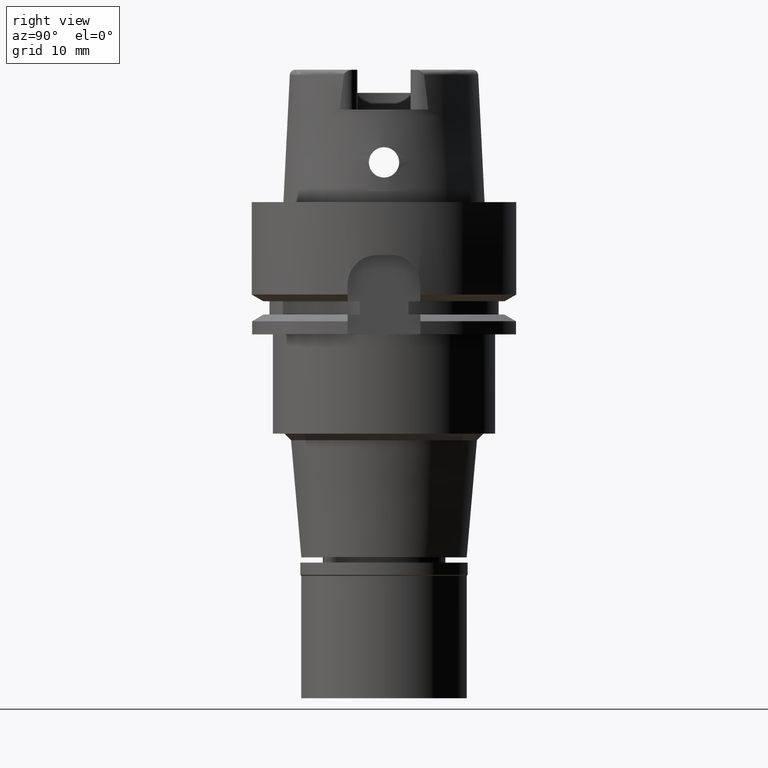
[diagram: clean part render]
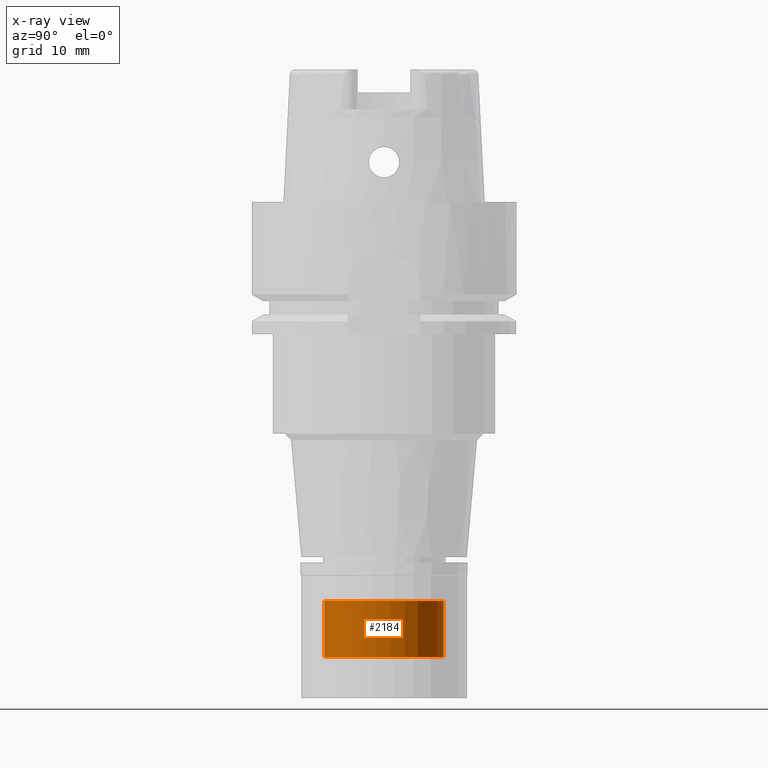
[diagram: x-ray — body ghosted, one internal face saturated and labeled with its STEP entity id]
A machine part, right view, then the same camera in x-ray: the body is ghosted and one INTERNAL B-rep face — a face not visible from any outside direction — is saturated and labeled: STEP entity #2184.
In plain terms, the highlighted cylindrical surface (partial cylindrical patch) has radius 9 mm, axis along (0, 0, -1).
Its self-contained STEP definition (entity closure, byte-faithful):
#86 = ORIENTED_EDGE ( 'NONE', *, *, #2782, .T. ) ;
#167 = ORIENTED_EDGE ( 'NONE', *, *, #4886, .F. ) ;
#302 = CARTESIAN_POINT ( 'NONE',  ( 0.0000000000000000000, -9.000000000000000000, -60.29999999999999716 ) ) ;
#445 = AXIS2_PLACEMENT_3D ( 'NONE', #2816, #4508, #1214 ) ;
#706 = CARTESIAN_POINT ( 'NONE',  ( 0.0000000000000000000, -9.000000000000000000, -68.79999999999999716 ) ) ;
#749 = LINE ( 'NONE', #4166, #2744 ) ;
#798 = CARTESIAN_POINT ( 'NONE',  ( 0.0000000000000000000, 1.523950476858999865E-14, -60.29999999999999716 ) ) ;
#1214 = DIRECTION ( 'NONE',  ( 0.0000000000000000000, -1.000000000000000000, 0.0000000000000000000 ) ) ;
#1493 = ORIENTED_EDGE ( 'NONE', *, *, #4285, .T. ) ;
#1528 = CYLINDRICAL_SURFACE ( 'NONE', #2891, 9.000000000000000000 ) ;
#1759 = EDGE_CURVE ( 'NONE', #1818, #3457, #2384, .T. ) ;
#1805 = ORIENTED_EDGE ( 'NONE', *, *, #1759, .T. ) ;
#1818 = VERTEX_POINT ( 'NONE', #706 ) ;
#2105 = DIRECTION ( 'NONE',  ( 0.0000000000000000000, 0.0000000000000000000, -1.000000000000000000 ) ) ;
#2184 = ADVANCED_FACE ( 'NONE', ( #3165 ), #1528, .T. ) ;
#2206 = CARTESIAN_POINT ( 'NONE',  ( 0.0000000000000000000, 9.000000000000000000, -60.29999999999999716 ) ) ;
#2358 = CARTESIAN_POINT ( 'NONE',  ( 0.0000000000000000000, 1.523950476858999865E-14, 24.44000000000000128 ) ) ;
#2384 = CIRCLE ( 'NONE', #445, 9.000000000000000000 ) ;
#2744 = VECTOR ( 'NONE', #2105, 1000.000000000000000 ) ;
#2782 = EDGE_CURVE ( 'NONE', #3820, #4177, #5022, .T. ) ;
#2816 = CARTESIAN_POINT ( 'NONE',  ( 0.0000000000000000000, 1.523950476858999865E-14, -68.79999999999999716 ) ) ;
#2891 = AXIS2_PLACEMENT_3D ( 'NONE', #2358, #4859, #4466 ) ;
#3165 = FACE_OUTER_BOUND ( 'NONE', #4632, .T. ) ;
#3254 = AXIS2_PLACEMENT_3D ( 'NONE', #798, #4598, #3725 ) ;
#3341 = CARTESIAN_POINT ( 'NONE',  ( 0.0000000000000000000, 9.000000000000000000, -68.79999999999999716 ) ) ;
#3457 = VERTEX_POINT ( 'NONE', #3341 ) ;
#3725 = DIRECTION ( 'NONE',  ( 0.0000000000000000000, 1.000000000000000000, 0.0000000000000000000 ) ) ;
#3820 = VERTEX_POINT ( 'NONE', #3977 ) ;
#3977 = CARTESIAN_POINT ( 'NONE',  ( 0.0000000000000000000, 9.000000000000000000, -60.29999999999999716 ) ) ;
#4166 = CARTESIAN_POINT ( 'NONE',  ( 0.0000000000000000000, -9.000000000000000000, -60.29999999999999716 ) ) ;
#4177 = VERTEX_POINT ( 'NONE', #302 ) ;
#4285 = EDGE_CURVE ( 'NONE', #4177, #1818, #749, .T. ) ;
#4466 = DIRECTION ( 'NONE',  ( 0.0000000000000000000, -1.000000000000000000, 0.0000000000000000000 ) ) ;
#4508 = DIRECTION ( 'NONE',  ( 0.0000000000000000000, 0.0000000000000000000, 1.000000000000000000 ) ) ;
#4598 = DIRECTION ( 'NONE',  ( 0.0000000000000000000, 0.0000000000000000000, -1.000000000000000000 ) ) ;
#4620 = DIRECTION ( 'NONE',  ( 0.0000000000000000000, 0.0000000000000000000, -1.000000000000000000 ) ) ;
#4632 = EDGE_LOOP ( 'NONE', ( #86, #1493, #1805, #167 ) ) ;
#4859 = DIRECTION ( 'NONE',  ( 0.0000000000000000000, 0.0000000000000000000, -1.000000000000000000 ) ) ;
#4886 = EDGE_CURVE ( 'NONE', #3820, #3457, #5036, .T. ) ;
#5022 = CIRCLE ( 'NONE', #3254, 9.000000000000000000 ) ;
#5036 = LINE ( 'NONE', #2206, #5212 ) ;
#5212 = VECTOR ( 'NONE', #4620, 1000.000000000000000 ) ;